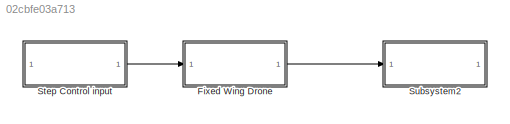
MODEL slx_02cbfe03a713
KIND model
CONFIG AbsTol = auto
CONFIG EnableMultiTasking = off
CONFIG FixedStep = auto
CONFIG MaxStep = auto
CONFIG MinStep = auto
CONFIG RelTol = 1e-3
CONFIG SampleTimeConstraint = Unconstrained
CONFIG SolverName = VariableStepAuto
CONFIG StartTime = 0.0
CONFIG StopTime = 10.0
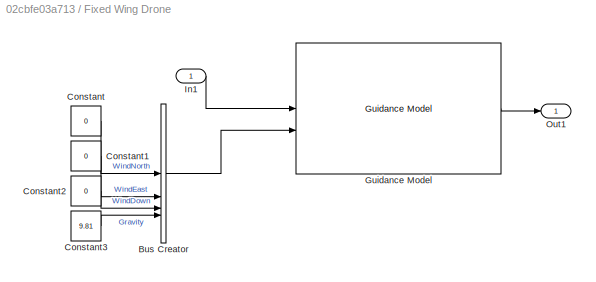
BLOCK [SubSystem] Fixed Wing Drone
BLOCK [BusCreator] Fixed Wing Drone/Bus Creator
  DisplayOption = bar
  InheritFromInputs = on
  Inputs = 4
  NonVirtualBus = on
  OutDataTypeStr = Bus: FixedWingGuidanceEnvironmentBus
BLOCK [Constant] Fixed Wing Drone/Constant
  Value = 0
BLOCK [Constant] Fixed Wing Drone/Constant1
  Value = 0
BLOCK [Constant] Fixed Wing Drone/Constant2
  Value = 0
BLOCK [Constant] Fixed Wing Drone/Constant3
  Value = 9.81
BLOCK [Reference] Fixed Wing Drone/Guidance Model  REF=uavalgslib/Guidance Model
  SourceBlock = uavalgslib/Guidance Model
  SourceType = Guidance Model
BLOCK [Inport] Fixed Wing Drone/In1
BLOCK [Outport] Fixed Wing Drone/Out1
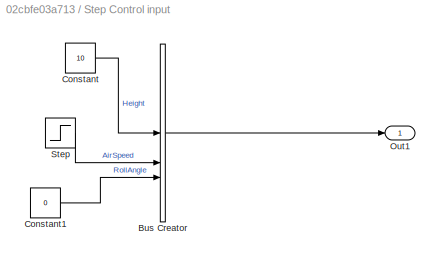
BLOCK [SubSystem] Step Control input
BLOCK [BusCreator] Step Control input/Bus Creator
  DisplayOption = bar
  InheritFromInputs = on
  Inputs = Height,AirSpeed,RollAngle
  NonVirtualBus = on
  OutDataTypeStr = Bus: FixedWingGuidanceControlBus
BLOCK [Constant] Step Control input/Constant
  Value = 10
BLOCK [Constant] Step Control input/Constant1
  Value = 0
BLOCK [Outport] Step Control input/Out1
BLOCK [Step] Step Control input/Step
  SampleTime = 0
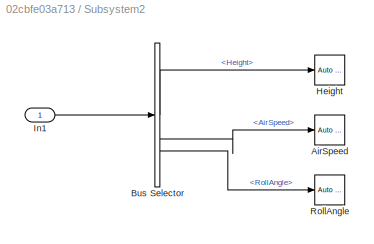
BLOCK [SubSystem] Subsystem2
BLOCK [Reference] Subsystem2/AirSpeed  REF=simulink_extras/Additional
Sinks/Auto
Correlator
  SourceBlock = simulink_extras/Additional\nSinks/Auto\nCorrelator
  SourceType = Auto Correlator
BLOCK [BusSelector] Subsystem2/Bus Selector
  OutputSignals = Height,AirSpeed,RollAngle
BLOCK [Reference] Subsystem2/Height  REF=simulink_extras/Additional
Sinks/Auto
Correlator
  SourceBlock = simulink_extras/Additional\nSinks/Auto\nCorrelator
  SourceType = Auto Correlator
BLOCK [Inport] Subsystem2/In1
BLOCK [Reference] Subsystem2/RollAngle  REF=simulink_extras/Additional
Sinks/Auto
Correlator
  SourceBlock = simulink_extras/Additional\nSinks/Auto\nCorrelator
  SourceType = Auto Correlator
LINE Fixed Wing Drone/Bus Creator:1 -> Fixed Wing Drone/Guidance Model:2
LINE Fixed Wing Drone/Constant1:1 -> Fixed Wing Drone/Bus Creator:2
LINE Fixed Wing Drone/Constant2:1 -> Fixed Wing Drone/Bus Creator:3
LINE Fixed Wing Drone/Constant3:1 -> Fixed Wing Drone/Bus Creator:4
LINE Fixed Wing Drone/Constant:1 -> Fixed Wing Drone/Bus Creator:1
LINE Fixed Wing Drone/Guidance Model:1 -> Fixed Wing Drone/Out1:1
LINE Fixed Wing Drone/In1:1 -> Fixed Wing Drone/Guidance Model:1
LINE Fixed Wing Drone:1 -> Subsystem2:1
LINE Step Control input/Bus Creator:1 -> Step Control input/Out1:1
LINE Step Control input/Constant1:1 -> Step Control input/Bus Creator:3
LINE Step Control input/Constant:1 -> Step Control input/Bus Creator:1
LINE Step Control input/Step:1 -> Step Control input/Bus Creator:2
LINE Step Control input:1 -> Fixed Wing Drone:1
LINE Subsystem2/Bus Selector:1 -> Subsystem2/Height:1
LINE Subsystem2/Bus Selector:2 -> Subsystem2/AirSpeed:1
LINE Subsystem2/Bus Selector:3 -> Subsystem2/RollAngle:1
LINE Subsystem2/In1:1 -> Subsystem2/Bus Selector:1
